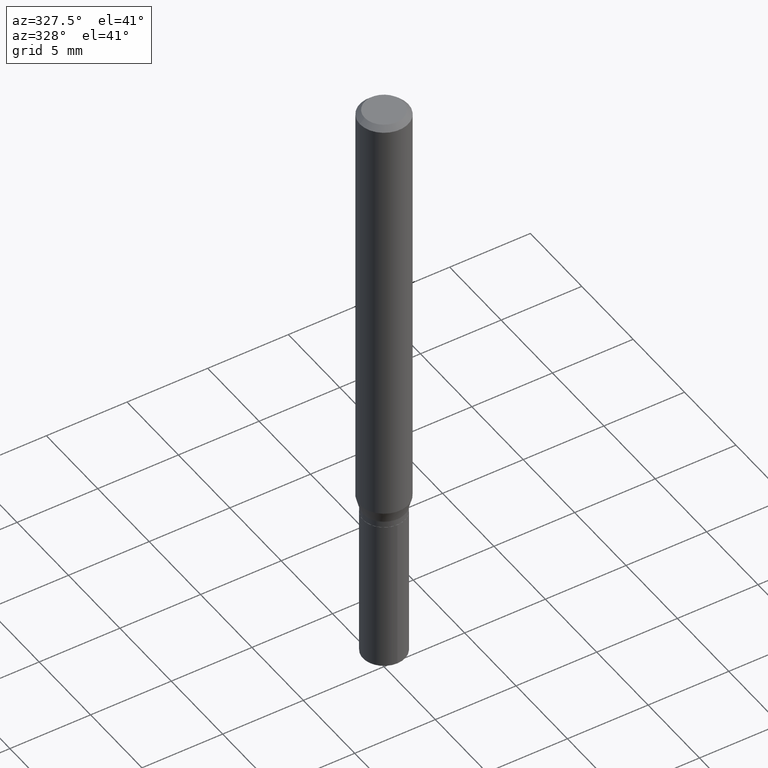
[diagram: clean part render]
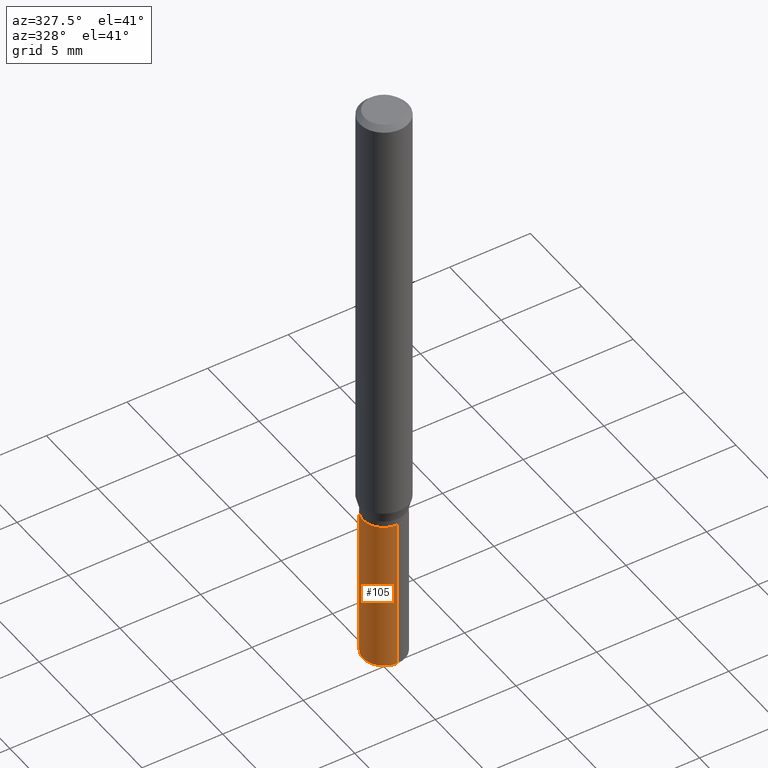
[diagram: same view with one face highlighted and labeled with its STEP entity id]
A machine part, auxiliary view. The second image highlights one B-rep face of the part: STEP entity #105.
In plain terms, the highlighted cylindrical surface (edge-blend (fillet) strip) has radius 1.3056 mm, axis along (-0, 0, 1).
Its self-contained STEP definition (entity closure, byte-faithful):
#5 = DIRECTION ( 'NONE',  ( -2.445458899330790108E-29, 3.491495526022433205E-15, 1.000000000000000000 ) ) ;
#9 = DIRECTION ( 'NONE',  ( -6.982962677686265133E-15, -1.000000000000000000, 5.314879365105569519E-15 ) ) ;
#20 = VERTEX_POINT ( 'NONE', #181 ) ;
#26 = ORIENTED_EDGE ( 'NONE', *, *, #296, .F. ) ;
#47 = EDGE_CURVE ( 'NONE', #193, #20, #106, .T. ) ;
#61 = VERTEX_POINT ( 'NONE', #166 ) ;
#99 = EDGE_LOOP ( 'NONE', ( #167, #405, #186, #26 ) ) ;
#105 = ADVANCED_FACE ( 'NONE', ( #195 ), #344, .T. ) ;
#106 = LINE ( 'NONE', #258, #123 ) ;
#115 = DIRECTION ( 'NONE',  ( -2.445458899330790108E-29, 3.491495526022433599E-15, 1.000000000000000000 ) ) ;
#123 = VECTOR ( 'NONE', #262, 39.37007874015748143 ) ;
#137 = VECTOR ( 'NONE', #115, 39.37007874015748143 ) ;
#159 = CARTESIAN_POINT ( 'NONE',  ( 3.600048621020370796E-29, -5.139926017961446759E-15, -1.472131786370833639 ) ) ;
#166 = CARTESIAN_POINT ( 'NONE',  ( -3.589242816330381089E-16, -0.05140000000000514990, -1.472131786370833195 ) ) ;
#167 = ORIENTED_EDGE ( 'NONE', *, *, #47, .F. ) ;
#181 = CARTESIAN_POINT ( 'NONE',  ( 3.652189661807275455E-16, 0.05139999999999619179, -1.094500000000000028 ) ) ;
#184 = CARTESIAN_POINT ( 'NONE',  ( -3.589242816330473287E-16, -0.05140000000000383151, -1.094499999999999806 ) ) ;
#186 = ORIENTED_EDGE ( 'NONE', *, *, #302, .T. ) ;
#191 = VERTEX_POINT ( 'NONE', #241 ) ;
#193 = VERTEX_POINT ( 'NONE', #353 ) ;
#195 = FACE_OUTER_BOUND ( 'NONE', #99, .T. ) ;
#231 = DIRECTION ( 'NONE',  ( -2.445458899330790108E-29, 3.491495526022433205E-15, 1.000000000000000000 ) ) ;
#241 = CARTESIAN_POINT ( 'NONE',  ( -3.589242816330473287E-16, -0.05140000000000383151, -1.094499999999999806 ) ) ;
#258 = CARTESIAN_POINT ( 'NONE',  ( 3.652189661807182270E-16, 0.05139999999999617791, -1.094500000000000028 ) ) ;
#262 = DIRECTION ( 'NONE',  ( -2.445458899330790108E-29, 3.491495526022433599E-15, 1.000000000000000000 ) ) ;
#268 = CARTESIAN_POINT ( 'NONE',  ( 2.676565608369631794E-29, -3.821426325363822773E-15, -1.094499999999999806 ) ) ;
#293 = CIRCLE ( 'NONE', #326, 0.05140000000000000818 ) ;
#296 = EDGE_CURVE ( 'NONE', #20, #191, #474, .T. ) ;
#302 = EDGE_CURVE ( 'NONE', #61, #191, #378, .T. ) ;
#326 = AXIS2_PLACEMENT_3D ( 'NONE', #159, #5, #9 ) ;
#344 = CYLINDRICAL_SURFACE ( 'NONE', #443, 0.05140000000000000818 ) ;
#353 = CARTESIAN_POINT ( 'NONE',  ( 3.652189661807274962E-16, 0.05139999999999486646, -1.472131786370833861 ) ) ;
#378 = LINE ( 'NONE', #184, #137 ) ;
#379 = DIRECTION ( 'NONE',  ( -6.982962677686265133E-15, -1.000000000000000000, 2.657439682552784759E-15 ) ) ;
#405 = ORIENTED_EDGE ( 'NONE', *, *, #417, .T. ) ;
#410 = CARTESIAN_POINT ( 'NONE',  ( 2.676565608369631794E-29, -3.821426325363822773E-15, -1.094499999999999806 ) ) ;
#417 = EDGE_CURVE ( 'NONE', #193, #61, #293, .T. ) ;
#418 = DIRECTION ( 'NONE',  ( -2.445458899330790108E-29, 3.491495526022433205E-15, 1.000000000000000000 ) ) ;
#427 = AXIS2_PLACEMENT_3D ( 'NONE', #410, #231, #448 ) ;
#443 = AXIS2_PLACEMENT_3D ( 'NONE', #268, #418, #379 ) ;
#448 = DIRECTION ( 'NONE',  ( -6.982962677686265133E-15, -1.000000000000000000, 2.657439682552784759E-15 ) ) ;
#474 = CIRCLE ( 'NONE', #427, 0.05140000000000000818 ) ;